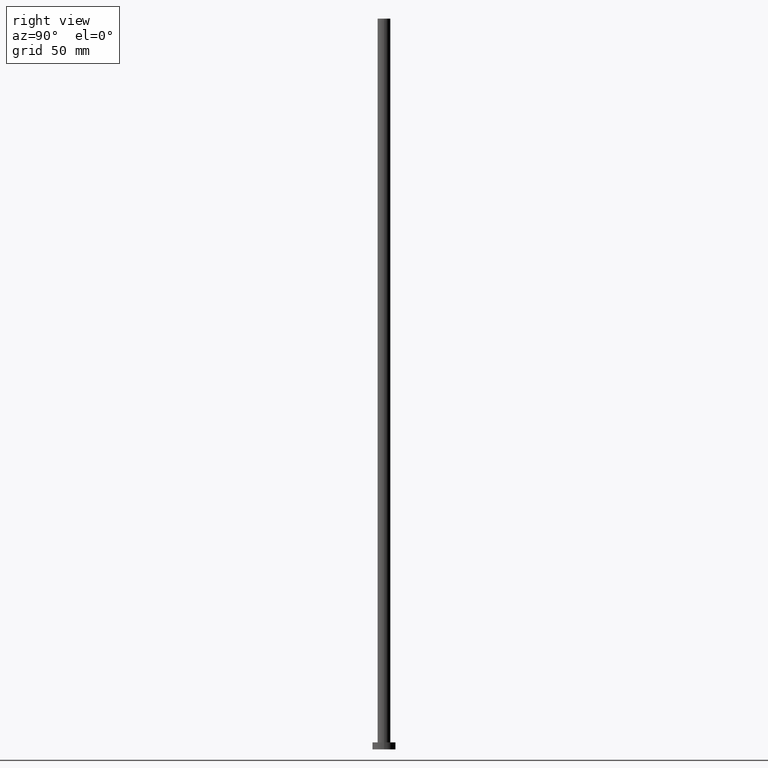
[diagram: clean part render]
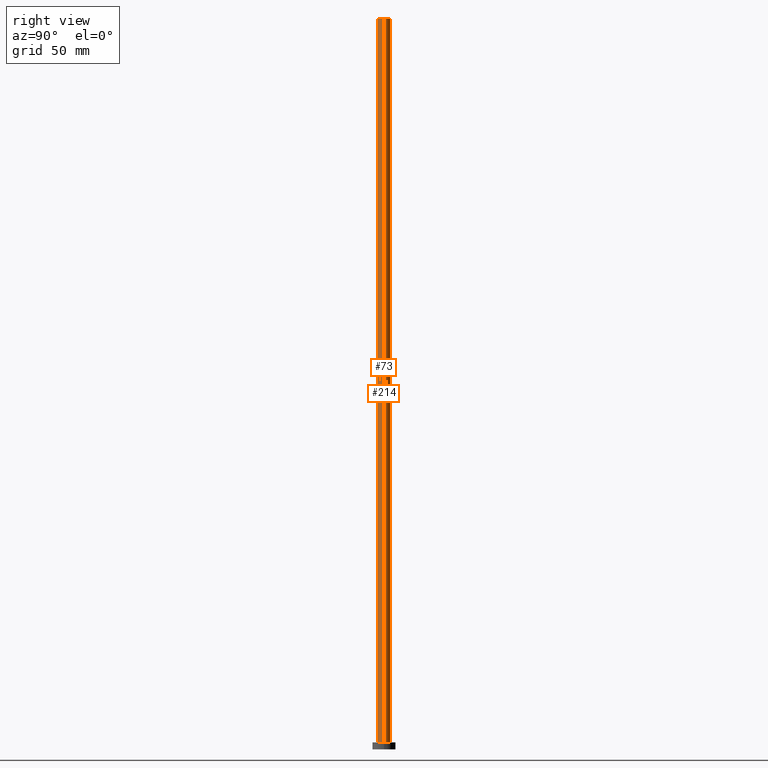
[diagram: same view with one multi-face feature highlighted, each face labeled with its STEP entity id]
A machine part, right view. The highlighted faces form ONE feature: a constant-radius fillet chain: 2 tangent blend faces with common blend radius 2.75 mm. The faces share edges in the B-rep.
Their STEP definitions:
[1] entity #73 (Cylinder):
#7 = CARTESIAN_POINT ( 'NONE',  ( 2.750000000000000000, 3.367778697655221012E-16, 315.0000000000000000 ) ) ;
#16 = AXIS2_PLACEMENT_3D ( 'NONE', #38, #183, #95 ) ;
#28 = EDGE_CURVE ( 'NONE', #103, #158, #163, .T. ) ;
#32 = DIRECTION ( 'NONE',  ( 0.000000000000000000, 0.000000000000000000, 1.000000000000000000 ) ) ;
#34 = DIRECTION ( 'NONE',  ( -0.000000000000000000, -0.000000000000000000, -1.000000000000000000 ) ) ;
#38 = CARTESIAN_POINT ( 'NONE',  ( 0.000000000000000000, 0.000000000000000000, 315.0000000000000000 ) ) ;
#44 = VECTOR ( 'NONE', #149, 1000.000000000000000 ) ;
#46 = ORIENTED_EDGE ( 'NONE', *, *, #83, .F. ) ;
#47 = AXIS2_PLACEMENT_3D ( 'NONE', #70, #34, #110 ) ;
#56 = LINE ( 'NONE', #130, #252 ) ;
#65 = CYLINDRICAL_SURFACE ( 'NONE', #47, 2.750000000000000000 ) ;
#67 = VERTEX_POINT ( 'NONE', #7 ) ;
#70 = CARTESIAN_POINT ( 'NONE',  ( 0.000000000000000000, 0.000000000000000000, 315.0000000000000000 ) ) ;
#71 = AXIS2_PLACEMENT_3D ( 'NONE', #194, #32, #155 ) ;
#72 = CARTESIAN_POINT ( 'NONE',  ( 2.750000000000000000, 3.367778697655221012E-16, 315.0000000000000000 ) ) ;
#73 = ADVANCED_FACE ( 'NONE', ( #91 ), #65, .T. ) ;
#83 = EDGE_CURVE ( 'NONE', #67, #158, #205, .T. ) ;
#85 = EDGE_CURVE ( 'NONE', #239, #103, #56, .T. ) ;
#91 = FACE_OUTER_BOUND ( 'NONE', #124, .T. ) ;
#95 = DIRECTION ( 'NONE',  ( 1.000000000000000000, 0.000000000000000000, 0.000000000000000000 ) ) ;
#103 = VERTEX_POINT ( 'NONE', #196 ) ;
#110 = DIRECTION ( 'NONE',  ( -1.000000000000000000, 0.000000000000000000, 0.000000000000000000 ) ) ;
#119 = ORIENTED_EDGE ( 'NONE', *, *, #28, .T. ) ;
#124 = EDGE_LOOP ( 'NONE', ( #46, #141, #171, #119 ) ) ;
#130 = CARTESIAN_POINT ( 'NONE',  ( -2.750000000000000000, 0.000000000000000000, 315.0000000000000000 ) ) ;
#132 = DIRECTION ( 'NONE',  ( -0.000000000000000000, -0.000000000000000000, -1.000000000000000000 ) ) ;
#141 = ORIENTED_EDGE ( 'NONE', *, *, #229, .F. ) ;
#149 = DIRECTION ( 'NONE',  ( -0.000000000000000000, -0.000000000000000000, -1.000000000000000000 ) ) ;
#155 = DIRECTION ( 'NONE',  ( 1.000000000000000000, 0.000000000000000000, 0.000000000000000000 ) ) ;
#158 = VERTEX_POINT ( 'NONE', #232 ) ;
#163 = CIRCLE ( 'NONE', #71, 2.750000000000000000 ) ;
#165 = CARTESIAN_POINT ( 'NONE',  ( -2.750000000000000000, 0.000000000000000000, 315.0000000000000000 ) ) ;
#171 = ORIENTED_EDGE ( 'NONE', *, *, #85, .T. ) ;
#183 = DIRECTION ( 'NONE',  ( 0.000000000000000000, 0.000000000000000000, 1.000000000000000000 ) ) ;
#187 = CIRCLE ( 'NONE', #16, 2.750000000000000000 ) ;
#194 = CARTESIAN_POINT ( 'NONE',  ( 0.000000000000000000, 0.000000000000000000, 3.000000000000000000 ) ) ;
#196 = CARTESIAN_POINT ( 'NONE',  ( -2.750000000000000000, 0.000000000000000000, 3.000000000000000000 ) ) ;
#205 = LINE ( 'NONE', #72, #44 ) ;
#229 = EDGE_CURVE ( 'NONE', #239, #67, #187, .T. ) ;
#232 = CARTESIAN_POINT ( 'NONE',  ( 2.750000000000000000, 3.367778697655221012E-16, 3.000000000000000000 ) ) ;
#239 = VERTEX_POINT ( 'NONE', #165 ) ;
#252 = VECTOR ( 'NONE', #132, 1000.000000000000000 ) ;
[2] entity #214 (Cylinder):
#4 = EDGE_CURVE ( 'NONE', #158, #103, #135, .T. ) ;
#7 = CARTESIAN_POINT ( 'NONE',  ( 2.750000000000000000, 3.367778697655221012E-16, 315.0000000000000000 ) ) ;
#8 = CARTESIAN_POINT ( 'NONE',  ( 0.000000000000000000, 0.000000000000000000, 315.0000000000000000 ) ) ;
#20 = ORIENTED_EDGE ( 'NONE', *, *, #4, .T. ) ;
#27 = DIRECTION ( 'NONE',  ( 1.000000000000000000, 0.000000000000000000, 0.000000000000000000 ) ) ;
#37 = FACE_OUTER_BOUND ( 'NONE', #192, .T. ) ;
#44 = VECTOR ( 'NONE', #149, 1000.000000000000000 ) ;
#49 = ORIENTED_EDGE ( 'NONE', *, *, #83, .T. ) ;
#56 = LINE ( 'NONE', #130, #252 ) ;
#63 = ORIENTED_EDGE ( 'NONE', *, *, #255, .F. ) ;
#67 = VERTEX_POINT ( 'NONE', #7 ) ;
#72 = CARTESIAN_POINT ( 'NONE',  ( 2.750000000000000000, 3.367778697655221012E-16, 315.0000000000000000 ) ) ;
#77 = DIRECTION ( 'NONE',  ( -0.000000000000000000, -0.000000000000000000, -1.000000000000000000 ) ) ;
#81 = AXIS2_PLACEMENT_3D ( 'NONE', #8, #179, #93 ) ;
#83 = EDGE_CURVE ( 'NONE', #67, #158, #205, .T. ) ;
#85 = EDGE_CURVE ( 'NONE', #239, #103, #56, .T. ) ;
#93 = DIRECTION ( 'NONE',  ( 1.000000000000000000, 0.000000000000000000, 0.000000000000000000 ) ) ;
#101 = ORIENTED_EDGE ( 'NONE', *, *, #85, .F. ) ;
#103 = VERTEX_POINT ( 'NONE', #196 ) ;
#130 = CARTESIAN_POINT ( 'NONE',  ( -2.750000000000000000, 0.000000000000000000, 315.0000000000000000 ) ) ;
#132 = DIRECTION ( 'NONE',  ( -0.000000000000000000, -0.000000000000000000, -1.000000000000000000 ) ) ;
#135 = CIRCLE ( 'NONE', #227, 2.750000000000000000 ) ;
#149 = DIRECTION ( 'NONE',  ( -0.000000000000000000, -0.000000000000000000, -1.000000000000000000 ) ) ;
#158 = VERTEX_POINT ( 'NONE', #232 ) ;
#162 = CYLINDRICAL_SURFACE ( 'NONE', #200, 2.750000000000000000 ) ;
#165 = CARTESIAN_POINT ( 'NONE',  ( -2.750000000000000000, 0.000000000000000000, 315.0000000000000000 ) ) ;
#179 = DIRECTION ( 'NONE',  ( 0.000000000000000000, 0.000000000000000000, 1.000000000000000000 ) ) ;
#192 = EDGE_LOOP ( 'NONE', ( #63, #49, #20, #101 ) ) ;
#196 = CARTESIAN_POINT ( 'NONE',  ( -2.750000000000000000, 0.000000000000000000, 3.000000000000000000 ) ) ;
#200 = AXIS2_PLACEMENT_3D ( 'NONE', #247, #77, #243 ) ;
#205 = LINE ( 'NONE', #72, #44 ) ;
#214 = ADVANCED_FACE ( 'NONE', ( #37 ), #162, .T. ) ;
#218 = CARTESIAN_POINT ( 'NONE',  ( 0.000000000000000000, 0.000000000000000000, 3.000000000000000000 ) ) ;
#226 = CIRCLE ( 'NONE', #81, 2.750000000000000000 ) ;
#227 = AXIS2_PLACEMENT_3D ( 'NONE', #218, #238, #27 ) ;
#232 = CARTESIAN_POINT ( 'NONE',  ( 2.750000000000000000, 3.367778697655221012E-16, 3.000000000000000000 ) ) ;
#238 = DIRECTION ( 'NONE',  ( 0.000000000000000000, 0.000000000000000000, 1.000000000000000000 ) ) ;
#239 = VERTEX_POINT ( 'NONE', #165 ) ;
#243 = DIRECTION ( 'NONE',  ( -1.000000000000000000, 0.000000000000000000, 0.000000000000000000 ) ) ;
#247 = CARTESIAN_POINT ( 'NONE',  ( 0.000000000000000000, 0.000000000000000000, 315.0000000000000000 ) ) ;
#252 = VECTOR ( 'NONE', #132, 1000.000000000000000 ) ;
#255 = EDGE_CURVE ( 'NONE', #67, #239, #226, .T. ) ;